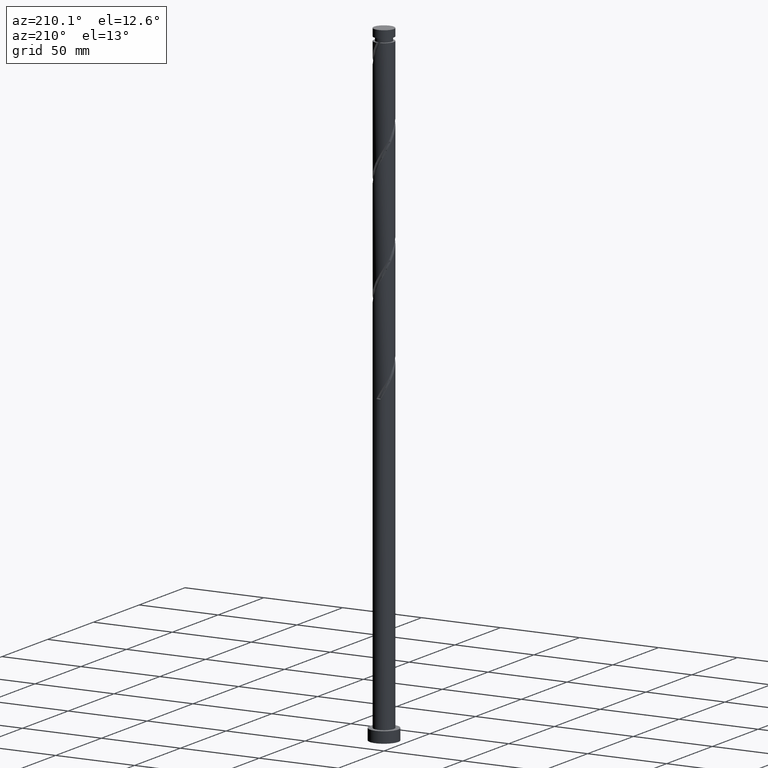
[diagram: clean part render]
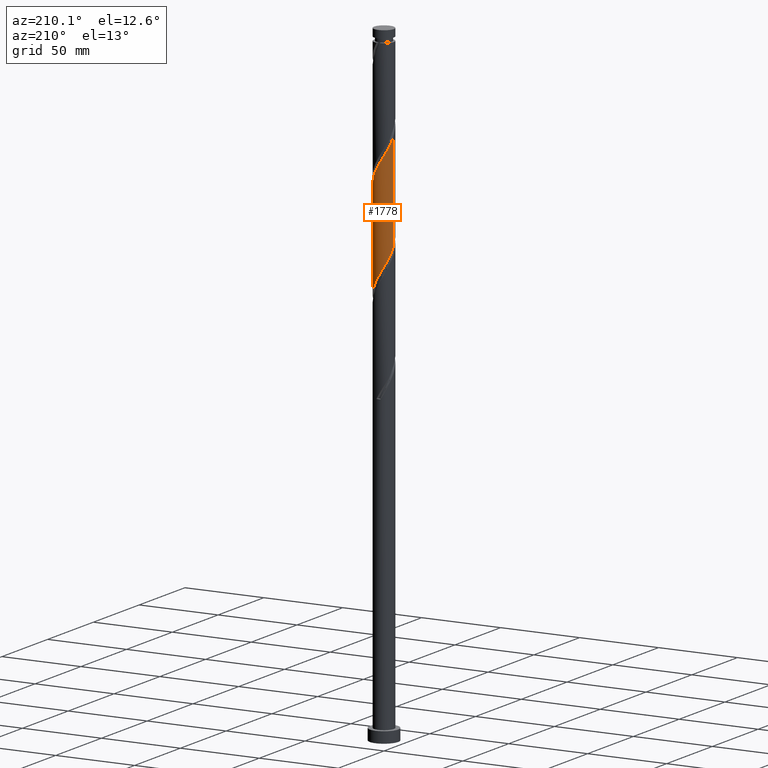
[diagram: same view with one face highlighted and labeled with its STEP entity id]
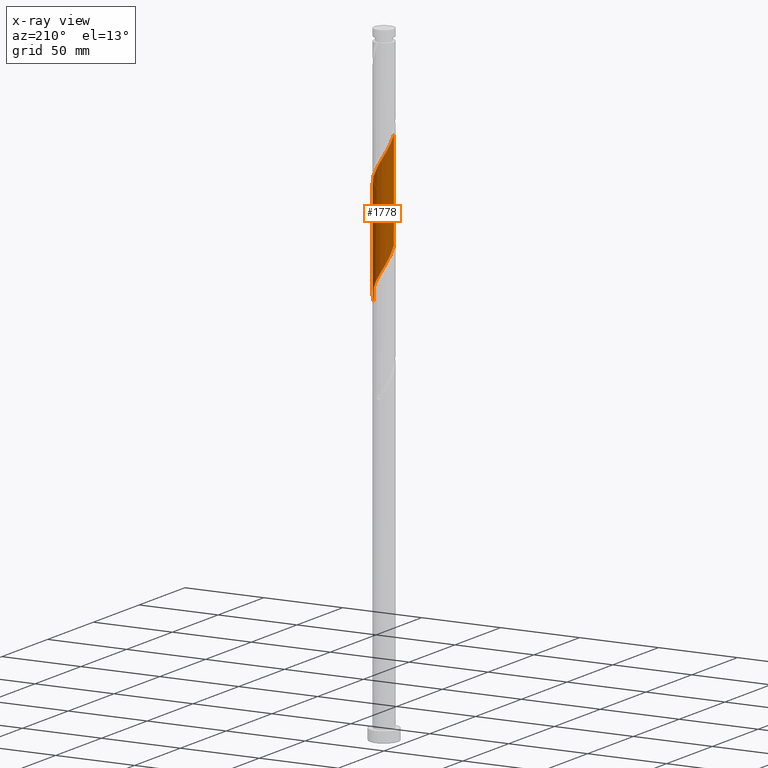
[diagram: x-ray of the same camera — body ghosted, the highlighted face saturated]
A machine part, auxiliary view. The second image highlights one B-rep face of the part: STEP entity #1778.
The next image is the same camera in x-ray: the body ghosted, the highlighted face saturated — about 0% of this face is hidden behind the body in this view.
In plain terms, the highlighted cylindrical surface (edge-blend (fillet) strip) has radius 6.25 mm, axis along (-0, -0, -1).
Its self-contained STEP definition (entity closure, byte-faithful):
#1 = CARTESIAN_POINT ( 'NONE',  ( -1.243734296383279370, 6.125000000000010658, 326.0788868898117130 ) ) ;
#12 = CARTESIAN_POINT ( 'NONE',  ( -6.250000000000003553, -8.371112635572568635E-15, 278.2043301333332579 ) ) ;
#50 =( BOUNDED_CURVE ( )  B_SPLINE_CURVE ( 2, ( #193, #473, #1735, #1398, #653, #181, #170, #1576, #1419, #1287, #664, #1255, #1095, #1584, #800, #819, #1086, #967, #1, #1265, #810, #634, #957, #1594, #1876, #1429, #827, #1556, #1103, #1885, #204, #1726, #500 ),
 .UNSPECIFIED., .F., .T. ) 
 B_SPLINE_CURVE_WITH_KNOTS ( ( 3, 2, 2, 2, 2, 2, 2, 2, 2, 2, 2, 2, 2, 2, 2, 2, 3 ),
 ( 0.4295286012773112949, 0.4333333333333333481, 0.4416666666666666519, 0.4499999999999999556, 0.4583333333333333703, 0.4666666666666666741, 0.4749999999999999778, 0.4833333333333332815, 0.4916666666666666963, 0.5000000000000000000, 0.5083333333333333037, 0.5166666666666666075, 0.5250000000000000222, 0.5333333333333333259, 0.5416666666666667407, 0.5500000000000000444, 0.5545286012773118500 ),
 .UNSPECIFIED. ) 
 CURVE ( )  GEOMETRIC_REPRESENTATION_ITEM ( )  RATIONAL_B_SPLINE_CURVE ( ( 0.9066196499552265919, 0.9068171577856393162, 0.9090909090909382595, 0.9041108139711866443, 0.9090909090909382595, 0.9041108139711866443, 0.9090909090909382595, 0.9041108139711866443, 0.9090909090909382595, 0.9041108139711866443, 0.9090909090909382595, 0.9041108139711866443, 0.9090909090909382595, 0.9041108139711866443, 0.9090909090909382595, 0.9041108139711866443, 0.9090909090909382595, 0.9041108139711866443, 0.9090909090909382595, 0.9041108139711866443, 0.9090909090909382595, 0.9041108139711866443, 0.9090909090909382595, 0.9041108139711866443, 0.9090909090909382595, 0.9041108139711866443, 0.9090909090909382595, 0.9041108139711866443, 0.9090909090909382595, 0.9041108139711866443, 0.9090909090909382595, 0.9063845652764852545, 0.9066196499552267030 ) ) 
 REPRESENTATION_ITEM ( '' )  );
#55 = CARTESIAN_POINT ( 'NONE',  ( -1.355054121864014194, 6.101338240650104439, 263.8566646675893708 ) ) ;
#65 = CARTESIAN_POINT ( 'NONE',  ( 3.627469755814541230, 5.089593615471748933, 254.9677757787005135 ) ) ;
#75 = CARTESIAN_POINT ( 'NONE',  ( -6.158738212326538175, 1.250585132590492643, 276.0788868898116561 ) ) ;
#104 = VECTOR ( 'NONE', #450, 1000.000000000000000 ) ;
#159 = ORIENTED_EDGE ( 'NONE', *, *, #552, .F. ) ;
#170 = CARTESIAN_POINT ( 'NONE',  ( 5.440886128238424213, 3.075590697661642281, 312.7455535564783986 ) ) ;
#179 = CARTESIAN_POINT ( 'NONE',  ( 0.000000000000000000, 0.000000000000000000, 400.0000000000000000 ) ) ;
#181 = CARTESIAN_POINT ( 'NONE',  ( 5.764143736506378346, 2.503730521985510382, 311.6344424453671422 ) ) ;
#192 = CARTESIAN_POINT ( 'NONE',  ( 0.5999708553810115808, 6.255721742095059490, 260.5233313342561132 ) ) ;
#193 = CARTESIAN_POINT ( 'NONE',  ( 6.250000000000008882, 4.036072163579606767E-15, 307.2867769796234256 ) ) ;
#204 = CARTESIAN_POINT ( 'NONE',  ( -6.209556196377223891, 0.7098674834314691040, 339.4122202231450274 ) ) ;
#224 = CARTESIAN_POINT ( 'NONE',  ( 3.092531911047311954, 5.470856050106012169, 256.0788868898116561 ) ) ;
#227 = ORIENTED_EDGE ( 'NONE', *, *, #580, .F. ) ;
#345 = CARTESIAN_POINT ( 'NONE',  ( 5.717599375351473334, 2.608270868757292860, 249.4122202231449705 ) ) ;
#356 = CARTESIAN_POINT ( 'NONE',  ( -6.221452243844894703, 0.5966841522592485347, 277.1899980009227988 ) ) ;
#379 = CARTESIAN_POINT ( 'NONE',  ( -4.682538449988047802, 4.139605496225884806, 270.5233313342560564 ) ) ;
#450 = DIRECTION ( 'NONE',  ( -0.000000000000000000, -0.000000000000000000, -1.000000000000000000 ) ) ;
#473 = CARTESIAN_POINT ( 'NONE',  ( 6.250000000000010658, 0.2990249955421676042, 307.7953255051874635 ) ) ;
#488 = CYLINDRICAL_SURFACE ( 'NONE', #1058, 6.250000000000000000 ) ;
#499 = CARTESIAN_POINT ( 'NONE',  ( -6.250000000000001776, 0.2990249955421905304, 277.6957816077691632 ) ) ;
#500 = CARTESIAN_POINT ( 'NONE',  ( -6.250000000000009770, -1.019481931689367440E-14, 340.6201103129568537 ) ) ;
#509 = CARTESIAN_POINT ( 'NONE',  ( -3.719541372160786619, 5.022699670574008124, 268.3011091120338847 ) ) ;
#510 = CARTESIAN_POINT ( 'NONE',  ( 6.250000000000008882, 4.036072163579607556E-15, 307.2867769796234256 ) ) ;
#528 = ORIENTED_EDGE ( 'NONE', *, *, #1904, .F. ) ;
#531 = CARTESIAN_POINT ( 'NONE',  ( -5.764143736506368576, 2.503730521985514379, 273.8566646675893708 ) ) ;
#552 = EDGE_CURVE ( 'NONE', #623, #1564, #50, .T. ) ;
#563 = EDGE_LOOP ( 'NONE', ( #159, #1844, #528, #227 ) ) ;
#580 = EDGE_CURVE ( 'NONE', #1564, #643, #1276, .T. ) ;
#593 = LINE ( 'NONE', #1678, #104 ) ;
#623 = VERTEX_POINT ( 'NONE', #510 ) ;
#634 = CARTESIAN_POINT ( 'NONE',  ( -3.092531911047312843, 5.470856050106017499, 329.4122202231448000 ) ) ;
#643 = VERTEX_POINT ( 'NONE', #12 ) ;
#653 = CARTESIAN_POINT ( 'NONE',  ( 5.961440974416463590, 1.877157827288001624, 310.5233313342561132 ) ) ;
#662 = CARTESIAN_POINT ( 'NONE',  ( -0.7137776319832572769, 6.243760167872227207, 262.7455535564783418 ) ) ;
#664 = CARTESIAN_POINT ( 'NONE',  ( 3.719541372160795945, 5.022699670574013453, 317.1899980009229125 ) ) ;
#673 = CARTESIAN_POINT ( 'NONE',  ( -4.247448380005636182, 4.631760119114005647, 269.4122202231450274 ) ) ;
#705 = CARTESIAN_POINT ( 'NONE',  ( -5.440886128238414443, 3.075590697661639172, 272.7455535564783418 ) ) ;
#798 = DIRECTION ( 'NONE',  ( -0.000000000000000000, -0.000000000000000000, -1.000000000000000000 ) ) ;
#800 = CARTESIAN_POINT ( 'NONE',  ( 1.355054121864022187, 6.101338240650115097, 321.6344424453672559 ) ) ;
#810 = CARTESIAN_POINT ( 'NONE',  ( -2.490014824216431055, 5.732567154005485222, 328.3011091120339984 ) ) ;
#818 = CARTESIAN_POINT ( 'NONE',  ( 5.383982739937292372, 3.174150257322000623, 250.5233313342560564 ) ) ;
#819 = CARTESIAN_POINT ( 'NONE',  ( 0.7137776319832607186, 6.243760167872234312, 322.7455535564783418 ) ) ;
#826 = CARTESIAN_POINT ( 'NONE',  ( 5.926272746371326505, 1.985394503774110309, 248.3011091120339131 ) ) ;
#827 = CARTESIAN_POINT ( 'NONE',  ( -5.383982739937297701, 3.174150257322010393, 334.9677757787006271 ) ) ;
#839 =( BOUNDED_CURVE ( )  B_SPLINE_CURVE ( 2, ( #1755, #499, #356, #75, #1110, #531, #705, #1895, #379, #673, #509, #1120, #1624, #1469, #55, #662, #1615, #192, #1583, #1605, #1734, #224, #65, #1592, #1275, #1459, #818, #345, #826, #1884, #1743, #1427, #1296 ),
 .UNSPECIFIED., .F., .T. ) 
 B_SPLINE_CURVE_WITH_KNOTS ( ( 3, 2, 2, 2, 2, 2, 2, 2, 2, 2, 2, 2, 2, 2, 2, 2, 3 ),
 ( 0.6795286012773115170, 0.6833333333333333481, 0.6916666666666666519, 0.6999999999999999556, 0.7083333333333333703, 0.7166666666666666741, 0.7249999999999999778, 0.7333333333333332815, 0.7416666666666666963, 0.7500000000000000000, 0.7583333333333333037, 0.7666666666666667185, 0.7750000000000000222, 0.7833333333333333259, 0.7916666666666666297, 0.8000000000000000444, 0.8045286012773115170 ),
 .UNSPECIFIED. ) 
 CURVE ( )  GEOMETRIC_REPRESENTATION_ITEM ( )  RATIONAL_B_SPLINE_CURVE ( ( 0.9066196499552214849, 0.9068171577856342092, 0.9090909090909331525, 0.9041108139711813152, 0.9090909090909331525, 0.9041108139711813152, 0.9090909090909331525, 0.9041108139711813152, 0.9090909090909331525, 0.9041108139711813152, 0.9090909090909331525, 0.9041108139711813152, 0.9090909090909331525, 0.9041108139711813152, 0.9090909090909331525, 0.9041108139711813152, 0.9090909090909331525, 0.9041108139711813152, 0.9090909090909331525, 0.9041108139711813152, 0.9090909090909331525, 0.9041108139711813152, 0.9090909090909331525, 0.9041108139711813152, 0.9090909090909331525, 0.9041108139711813152, 0.9090909090909331525, 0.9041108139711813152, 0.9090909090909331525, 0.9041108139711813152, 0.9090909090909331525, 0.9063845652764802585, 0.9066196499552214849 ) ) 
 REPRESENTATION_ITEM ( '' )  );
#912 = CARTESIAN_POINT ( 'NONE',  ( -6.250000000000009770, -1.019481931689367440E-14, 340.6201103129568537 ) ) ;
#957 = CARTESIAN_POINT ( 'NONE',  ( -3.627469755814543007, 5.089593615471760479, 330.5233313342561132 ) ) ;
#967 = CARTESIAN_POINT ( 'NONE',  ( -0.5999708553810062517, 6.255721742095069260, 324.9677757787006271 ) ) ;
#1058 = AXIS2_PLACEMENT_3D ( 'NONE', #179, #798, #1226 ) ;
#1086 = CARTESIAN_POINT ( 'NONE',  ( 0.05690338830112708080, 6.249740954983652230, 323.8566646675894276 ) ) ;
#1087 = CARTESIAN_POINT ( 'NONE',  ( 6.250000000000003553, 6.009262999107450825E-15, 244.8709967999999151 ) ) ;
#1093 = FACE_OUTER_BOUND ( 'NONE', #563, .T. ) ;
#1094 = EDGE_CURVE ( 'NONE', #623, #1187, #593, .T. ) ;
#1095 = CARTESIAN_POINT ( 'NONE',  ( 2.593982488030362354, 5.686277767731009014, 319.4122202231450274 ) ) ;
#1103 = CARTESIAN_POINT ( 'NONE',  ( -5.926272746371335387, 1.985394503774120301, 337.1899980009227988 ) ) ;
#1110 = CARTESIAN_POINT ( 'NONE',  ( -5.961440974416452931, 1.877157827288003622, 274.9677757787006271 ) ) ;
#1120 = CARTESIAN_POINT ( 'NONE',  ( -3.191634364315941053, 5.413639222034015042, 267.1899980009228557 ) ) ;
#1173 = VECTOR ( 'NONE', #1897, 1000.000000000000000 ) ;
#1187 = VERTEX_POINT ( 'NONE', #1087 ) ;
#1226 = DIRECTION ( 'NONE',  ( -1.000000000000000000, 0.000000000000000000, 0.000000000000000000 ) ) ;
#1255 = CARTESIAN_POINT ( 'NONE',  ( 3.191634364315950823, 5.413639222034017706, 318.3011091120337710 ) ) ;
#1265 = CARTESIAN_POINT ( 'NONE',  ( -1.887497737385549934, 5.994278257904948504, 327.1899980009228557 ) ) ;
#1275 = CARTESIAN_POINT ( 'NONE',  ( 4.606386852552440736, 4.224180413362104147, 252.7455535564782565 ) ) ;
#1276 = LINE ( 'NONE', #1715, #1173 ) ;
#1287 = CARTESIAN_POINT ( 'NONE',  ( 4.247448380005641511, 4.631760119114008312, 316.0788868898116561 ) ) ;
#1296 = CARTESIAN_POINT ( 'NONE',  ( 6.250000000000003553, 6.009262999107450825E-15, 244.8709967999999151 ) ) ;
#1398 = CARTESIAN_POINT ( 'NONE',  ( 6.158738212326547057, 1.250585132590491755, 309.4122202231449705 ) ) ;
#1419 = CARTESIAN_POINT ( 'NONE',  ( 4.682538449988057572, 4.139605496225886583, 314.9677757787005703 ) ) ;
#1427 = CARTESIAN_POINT ( 'NONE',  ( 6.250000000000002665, 0.3560858590401961843, 245.4765881093843802 ) ) ;
#1429 = CARTESIAN_POINT ( 'NONE',  ( -5.050366104523118516, 3.740029645886720822, 333.8566646675894845 ) ) ;
#1459 = CARTESIAN_POINT ( 'NONE',  ( 5.050366104523114963, 3.740029645886711052, 251.6344424453672559 ) ) ;
#1469 = CARTESIAN_POINT ( 'NONE',  ( -1.996330611744771666, 5.958916313427988776, 264.9677757787005703 ) ) ;
#1556 = CARTESIAN_POINT ( 'NONE',  ( -5.717599375351478663, 2.608270868757298633, 336.0788868898117130 ) ) ;
#1564 = VERTEX_POINT ( 'NONE', #912 ) ;
#1576 = CARTESIAN_POINT ( 'NONE',  ( 5.117628519970468304, 3.647450873337766186, 313.8566646675894845 ) ) ;
#1583 = CARTESIAN_POINT ( 'NONE',  ( 1.243734296383280924, 6.124999999999998224, 259.4122202231449705 ) ) ;
#1584 = CARTESIAN_POINT ( 'NONE',  ( 1.996330611744778771, 5.958916313427994993, 320.5233313342561701 ) ) ;
#1592 = CARTESIAN_POINT ( 'NONE',  ( 4.162407600581769174, 4.708331180837495467, 253.8566646675894845 ) ) ;
#1594 = CARTESIAN_POINT ( 'NONE',  ( -4.162407600581770950, 4.708331180837500796, 331.6344424453671422 ) ) ;
#1605 = CARTESIAN_POINT ( 'NONE',  ( 1.887497737385553265, 5.994278257904940510, 258.3011091120338278 ) ) ;
#1615 = CARTESIAN_POINT ( 'NONE',  ( -0.05690338830112281338, 6.249740954983644237, 261.6344424453671991 ) ) ;
#1624 = CARTESIAN_POINT ( 'NONE',  ( -2.593982488030357025, 5.686277767731000132, 266.0788868898116561 ) ) ;
#1678 = CARTESIAN_POINT ( 'NONE',  ( 6.250000000000000000, 7.654042494670957606E-16, 400.0000000000000000 ) ) ;
#1715 = CARTESIAN_POINT ( 'NONE',  ( -6.250000000000000000, 0.000000000000000000, 400.0000000000000000 ) ) ;
#1726 = CARTESIAN_POINT ( 'NONE',  ( -6.250000000000012434, 0.3560858590401752011, 340.0145190035723317 ) ) ;
#1734 = CARTESIAN_POINT ( 'NONE',  ( 2.490014824216431499, 5.732567154005474563, 257.1899980009227988 ) ) ;
#1735 = CARTESIAN_POINT ( 'NONE',  ( 6.221452243844905361, 0.5966841522592428726, 308.3011091120338847 ) ) ;
#1743 = CARTESIAN_POINT ( 'NONE',  ( 6.209556196377216786, 0.7098674834314656623, 246.0788868898116561 ) ) ;
#1755 = CARTESIAN_POINT ( 'NONE',  ( -6.250000000000003553, -8.371112635572568635E-15, 278.2043301333332579 ) ) ;
#1778 = ADVANCED_FACE ( 'NONE', ( #1093 ), #488, .T. ) ;
#1844 = ORIENTED_EDGE ( 'NONE', *, *, #1094, .T. ) ;
#1876 = CARTESIAN_POINT ( 'NONE',  ( -4.606386852552446065, 4.224180413362113029, 332.7455535564783418 ) ) ;
#1884 = CARTESIAN_POINT ( 'NONE',  ( 6.134946117391183229, 1.362518138790934419, 247.1899980009227988 ) ) ;
#1885 = CARTESIAN_POINT ( 'NONE',  ( -6.134946117391189446, 1.362518138790940636, 338.3011091120338278 ) ) ;
#1895 = CARTESIAN_POINT ( 'NONE',  ( -5.117628519970460310, 3.647450873337766630, 271.6344424453671422 ) ) ;
#1897 = DIRECTION ( 'NONE',  ( -0.000000000000000000, -0.000000000000000000, -1.000000000000000000 ) ) ;
#1904 = EDGE_CURVE ( 'NONE', #643, #1187, #839, .T. ) ;